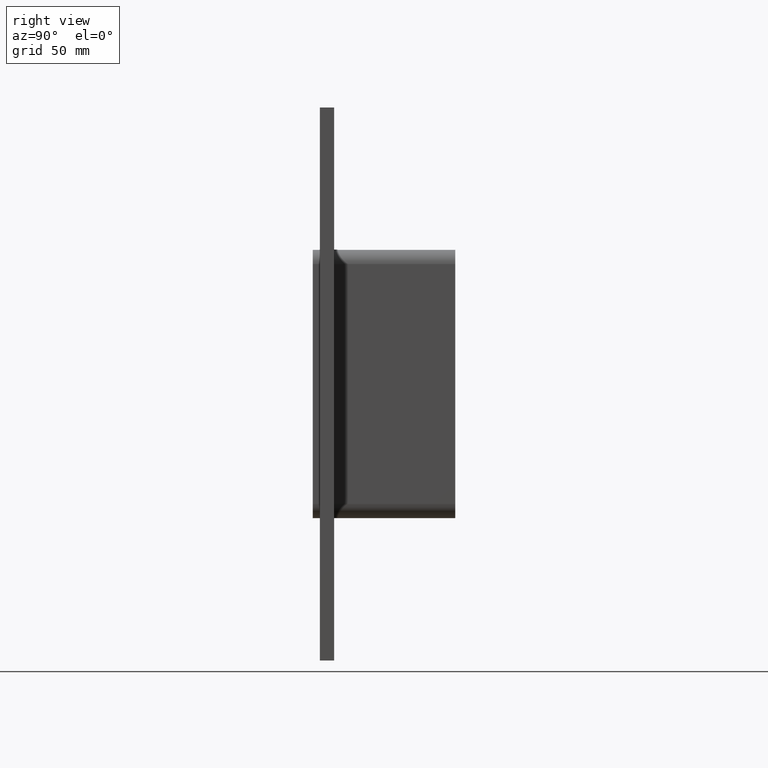
[diagram: clean part render]
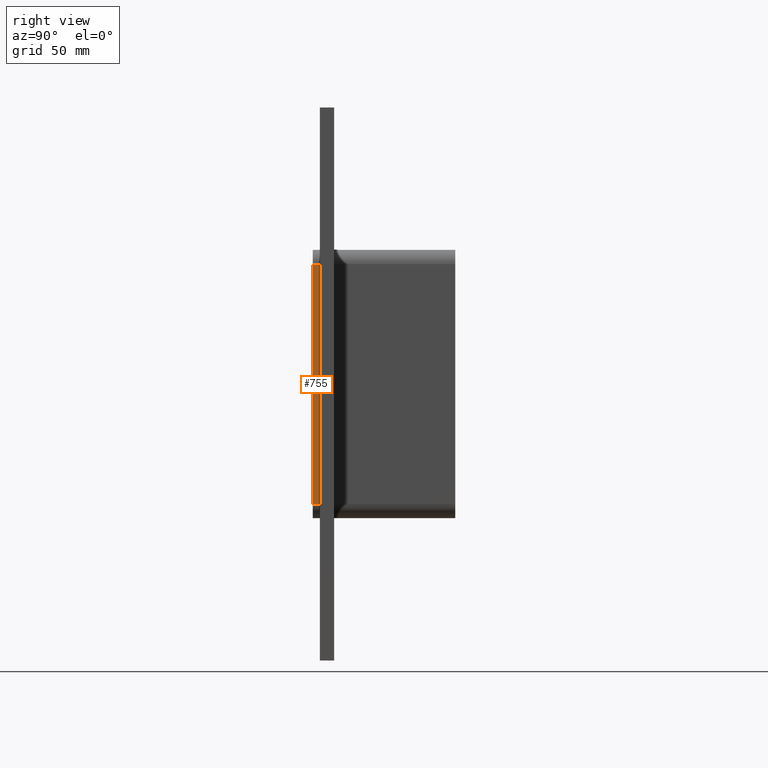
[diagram: same view with one face highlighted and labeled with its STEP entity id]
A machine part, right view. The second image highlights one B-rep face of the part: STEP entity #755.
In plain terms, the highlighted planar face has unit normal (1, 0, 0).
Its self-contained STEP definition (entity closure, byte-faithful):
#525=CARTESIAN_POINT('',(36.250000000000007,0.0,50.500000000000007));
#526=VERTEX_POINT('',#525);
#534=CARTESIAN_POINT('',(36.250000000000007,0.0,-50.500000000000007));
#535=VERTEX_POINT('',#534);
#536=CARTESIAN_POINT('',(36.250000000000007,0.0,-50.5));
#537=DIRECTION('',(0.0,0.0,1.0));
#538=VECTOR('',#537,101.0);
#539=LINE('',#536,#538);
#540=EDGE_CURVE('',#535,#526,#539,.T.);
#682=CARTESIAN_POINT('',(36.250000000000007,-3.0,50.500000000000007));
#683=VERTEX_POINT('',#682);
#691=CARTESIAN_POINT('',(36.250000000000007,-3.0,50.500000000000007));
#692=DIRECTION('',(0.0,1.0,0.0));
#693=VECTOR('',#692,3.0);
#694=LINE('',#691,#693);
#695=EDGE_CURVE('',#683,#526,#694,.T.);
#732=CARTESIAN_POINT('',(36.250000000000007,0.0,56.5));
#733=DIRECTION('',(1.0,0.0,0.0));
#734=DIRECTION('',(0.0,0.0,-1.0));
#735=AXIS2_PLACEMENT_3D('',#732,#733,#734);
#736=PLANE('',#735);
#737=ORIENTED_EDGE('',*,*,#540,.T.);
#738=ORIENTED_EDGE('',*,*,#695,.F.);
#739=CARTESIAN_POINT('',(36.250000000000007,-3.0,-50.500000000000007));
#740=VERTEX_POINT('',#739);
#741=CARTESIAN_POINT('',(36.250000000000007,-3.0,-50.500000000000014));
#742=DIRECTION('',(0.0,0.0,1.0));
#743=VECTOR('',#742,101.00000000000001);
#744=LINE('',#741,#743);
#745=EDGE_CURVE('',#740,#683,#744,.T.);
#746=ORIENTED_EDGE('',*,*,#745,.F.);
#747=CARTESIAN_POINT('',(36.250000000000007,0.0,-50.500000000000007));
#748=DIRECTION('',(0.0,-1.0,0.0));
#749=VECTOR('',#748,3.0);
#750=LINE('',#747,#749);
#751=EDGE_CURVE('',#535,#740,#750,.T.);
#752=ORIENTED_EDGE('',*,*,#751,.F.);
#753=EDGE_LOOP('',(#737,#738,#746,#752));
#754=FACE_OUTER_BOUND('',#753,.T.);
#755=ADVANCED_FACE('',(#754),#736,.T.);